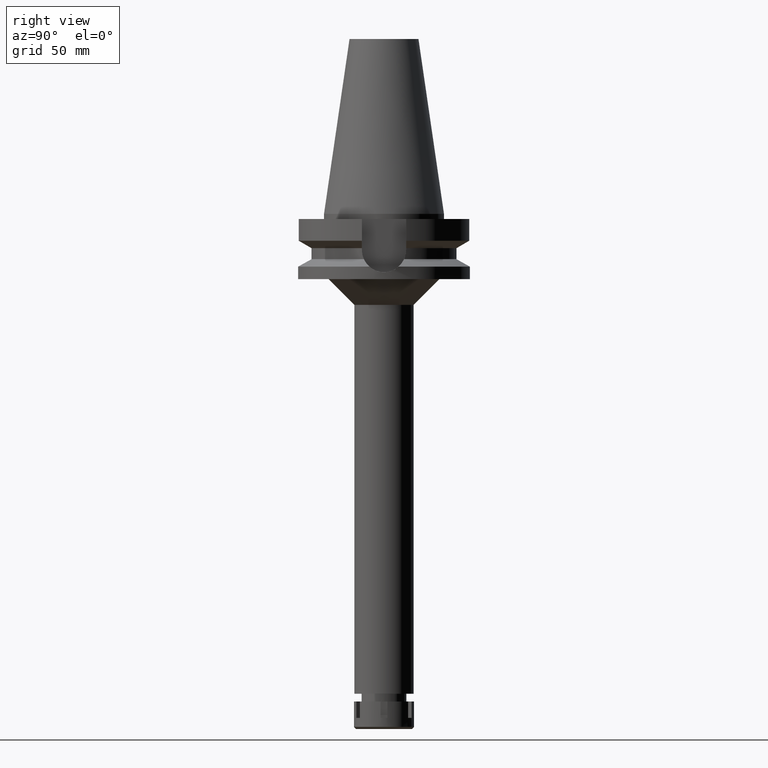
[diagram: clean part render]
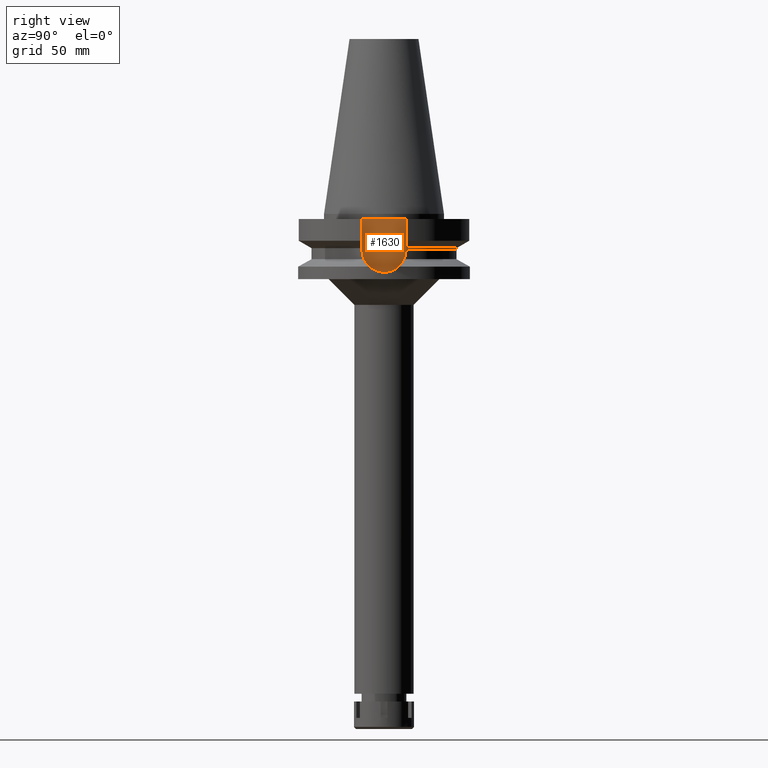
[diagram: same view with one face highlighted and labeled with its STEP entity id]
A machine part, right view. The second image highlights one B-rep face of the part: STEP entity #1630.
In plain terms, the highlighted planar face has unit normal (1, 0, 0).
Its self-contained STEP definition (entity closure, byte-faithful):
#75 = EDGE_CURVE ( 'NONE', #2028, #881, #1253, .T. ) ;
#156 = DIRECTION ( 'NONE',  ( 0.0000000000000000000, -1.000000000000000000, 0.0000000000000000000 ) ) ;
#234 = DIRECTION ( 'NONE',  ( 0.0000000000000000000, 1.000000000000000000, 0.0000000000000000000 ) ) ;
#286 = ORIENTED_EDGE ( 'NONE', *, *, #727, .F. ) ;
#396 = EDGE_CURVE ( 'NONE', #2028, #2567, #1751, .T. ) ;
#428 = VECTOR ( 'NONE', #2809, 1000.000000000000000 ) ;
#576 = VERTEX_POINT ( 'NONE', #1768 ) ;
#707 = DIRECTION ( 'NONE',  ( 1.000000000000000000, 0.0000000000000000000, 0.0000000000000000000 ) ) ;
#727 = EDGE_CURVE ( 'NONE', #2567, #576, #2341, .T. ) ;
#776 = DIRECTION ( 'NONE',  ( 0.0000000000000000000, 1.000000000000000000, 0.0000000000000000000 ) ) ;
#874 = LINE ( 'NONE', #1987, #978 ) ;
#881 = VERTEX_POINT ( 'NONE', #1694 ) ;
#976 = CARTESIAN_POINT ( 'NONE',  ( 35.39999999999999858, 12.84999999999999964, -3.000000000000000000 ) ) ;
#978 = VECTOR ( 'NONE', #2777, 1000.000000000000000 ) ;
#1253 = LINE ( 'NONE', #976, #1932 ) ;
#1293 = CARTESIAN_POINT ( 'NONE',  ( 35.39999999999999858, 12.84999999999999964, -3.000000000000000000 ) ) ;
#1630 = ADVANCED_FACE ( 'NONE', ( #2965 ), #3193, .T. ) ;
#1664 = ORIENTED_EDGE ( 'NONE', *, *, #396, .F. ) ;
#1694 = CARTESIAN_POINT ( 'NONE',  ( 35.39999999999999858, -12.84999999999999964, -3.000000000000000000 ) ) ;
#1751 = LINE ( 'NONE', #3106, #428 ) ;
#1764 = CARTESIAN_POINT ( 'NONE',  ( 35.39999999999999858, 12.84999999999999964, -21.14999999999999858 ) ) ;
#1768 = CARTESIAN_POINT ( 'NONE',  ( 35.39999999999999858, -12.84999999999999964, -21.14999999999999858 ) ) ;
#1932 = VECTOR ( 'NONE', #156, 1000.000000000000000 ) ;
#1987 = CARTESIAN_POINT ( 'NONE',  ( 35.39999999999999858, -12.84999999999999964, -21.14999999999999858 ) ) ;
#2028 = VERTEX_POINT ( 'NONE', #1293 ) ;
#2088 = CARTESIAN_POINT ( 'NONE',  ( 35.39999999999999858, 0.0000000000000000000, 0.0000000000000000000 ) ) ;
#2112 = EDGE_LOOP ( 'NONE', ( #2239, #286, #1664, #3100 ) ) ;
#2239 = ORIENTED_EDGE ( 'NONE', *, *, #3447, .F. ) ;
#2341 = CIRCLE ( 'NONE', #2568, 12.84999999999999964 ) ;
#2567 = VERTEX_POINT ( 'NONE', #1764 ) ;
#2568 = AXIS2_PLACEMENT_3D ( 'NONE', #3539, #2660, #234 ) ;
#2660 = DIRECTION ( 'NONE',  ( -1.000000000000000000, 0.0000000000000000000, 0.0000000000000000000 ) ) ;
#2777 = DIRECTION ( 'NONE',  ( 0.0000000000000000000, 0.0000000000000000000, 1.000000000000000000 ) ) ;
#2809 = DIRECTION ( 'NONE',  ( 0.0000000000000000000, 0.0000000000000000000, -1.000000000000000000 ) ) ;
#2965 = FACE_OUTER_BOUND ( 'NONE', #2112, .T. ) ;
#3100 = ORIENTED_EDGE ( 'NONE', *, *, #75, .T. ) ;
#3106 = CARTESIAN_POINT ( 'NONE',  ( 35.39999999999999858, 12.84999999999999964, -3.000000000000000000 ) ) ;
#3193 = PLANE ( 'NONE',  #3450 ) ;
#3447 = EDGE_CURVE ( 'NONE', #576, #881, #874, .T. ) ;
#3450 = AXIS2_PLACEMENT_3D ( 'NONE', #2088, #707, #776 ) ;
#3539 = CARTESIAN_POINT ( 'NONE',  ( 35.39999999999999858, 0.0000000000000000000, -21.14999999999999858 ) ) ;